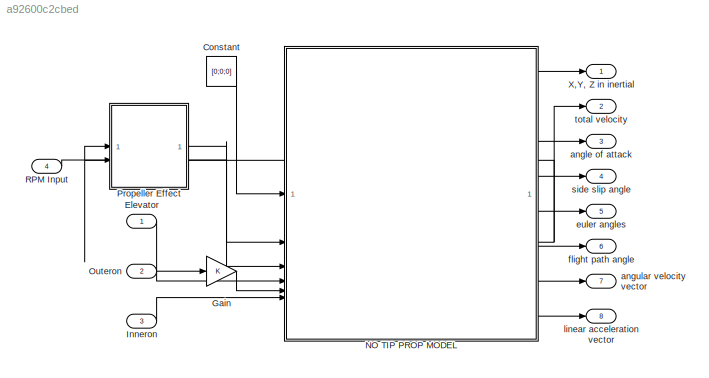
MODEL slx_a92600c2cbed
KIND model
CONFIG AbsTol = auto
CONFIG EnableMultiTasking = off
CONFIG FixedStep = auto
CONFIG MaxStep = auto
CONFIG MinStep = auto
CONFIG RelTol = 1e-3
CONFIG SampleTimeConstraint = Unconstrained
CONFIG SolverName = VariableStepAuto
CONFIG StartTime = 0.0
CONFIG StopTime = 100.0
BLOCK [Constant] Constant
  Value = [0;0;0]
BLOCK [Inport] Elevator
BLOCK [Gain] Gain
BLOCK [Inport] Inneron
  Port = 3
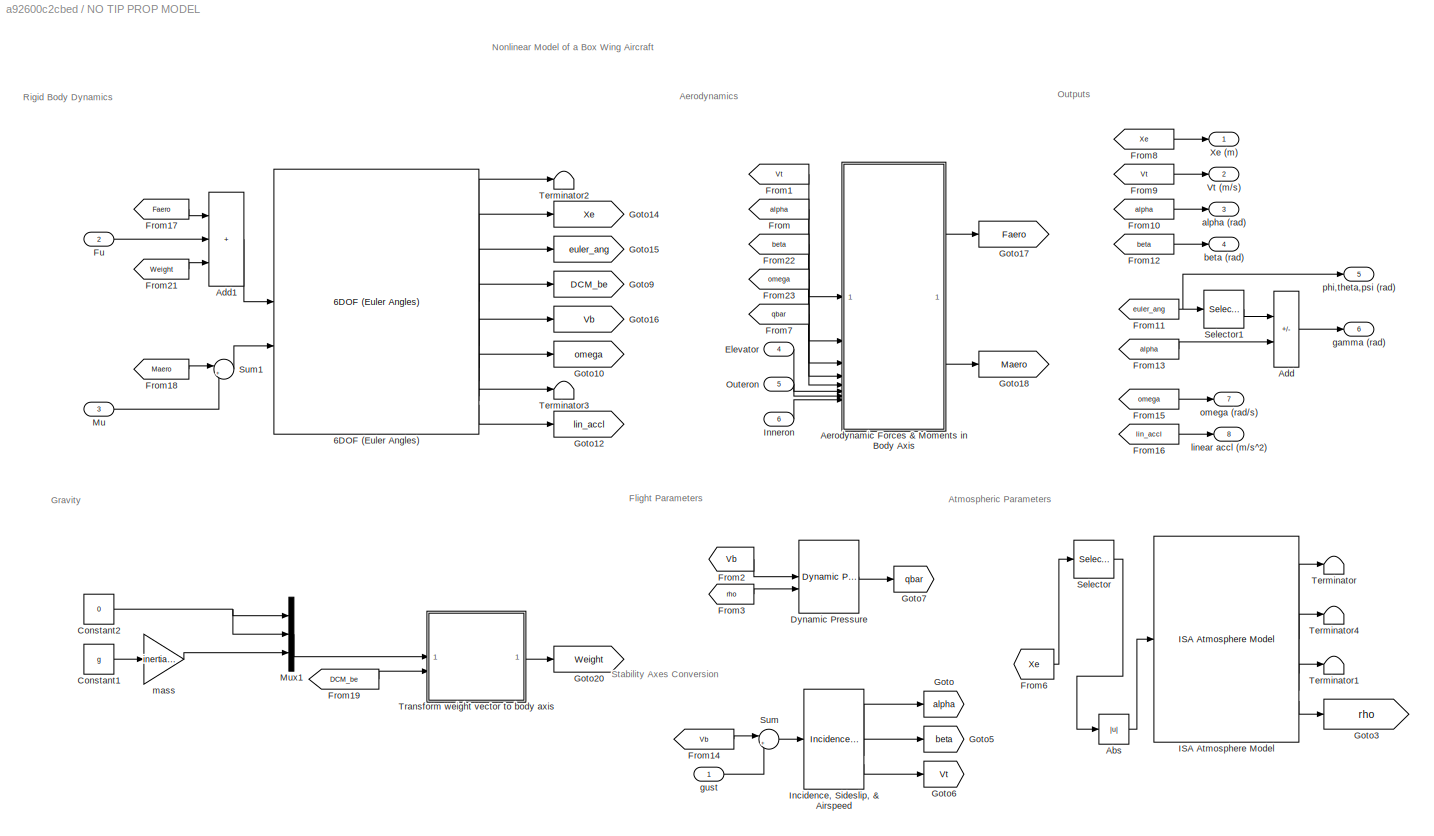
BLOCK [SubSystem] NO TIP PROP MODEL
BLOCK [Reference] NO TIP PROP MODEL/6DOF (Euler Angles)  REF=shared6dof/6DOF (Euler Angles)
  SourceBlock = shared6dof/6DOF (Euler Angles)
  SourceType = 6DOF EoM (Body Axis)
BLOCK [Abs] NO TIP PROP MODEL/Abs
  SaturateOnIntegerOverflow = off
BLOCK [Sum] NO TIP PROP MODEL/Add
  IconShape = rectangular
  Inputs = +-
BLOCK [Sum] NO TIP PROP MODEL/Add1
  IconShape = rectangular
  Inputs = +++
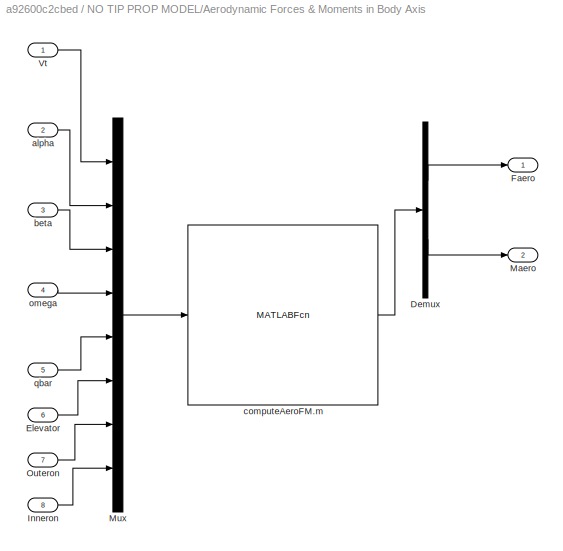
BLOCK [SubSystem] NO TIP PROP MODEL/Aerodynamic Forces & Moments in Body Axis
BLOCK [Demux] NO TIP PROP MODEL/Aerodynamic Forces & Moments in Body Axis/Demux
  Outputs = 2
BLOCK [Inport] NO TIP PROP MODEL/Aerodynamic Forces & Moments in Body Axis/Elevator 
  Port = 6
BLOCK [Outport] NO TIP PROP MODEL/Aerodynamic Forces & Moments in Body Axis/Faero
  PortDimensions = 3
BLOCK [Inport] NO TIP PROP MODEL/Aerodynamic Forces & Moments in Body Axis/Inneron
  Port = 8
BLOCK [Outport] NO TIP PROP MODEL/Aerodynamic Forces & Moments in Body Axis/Maero
  Port = 2
  PortDimensions = 3
BLOCK [Mux] NO TIP PROP MODEL/Aerodynamic Forces & Moments in Body Axis/Mux
  DisplayOption = bar
  Inputs = 8
BLOCK [Inport] NO TIP PROP MODEL/Aerodynamic Forces & Moments in Body Axis/Outeron
  Port = 7
BLOCK [Inport] NO TIP PROP MODEL/Aerodynamic Forces & Moments in Body Axis/Vt
BLOCK [Inport] NO TIP PROP MODEL/Aerodynamic Forces & Moments in Body Axis/alpha
  Port = 2
BLOCK [Inport] NO TIP PROP MODEL/Aerodynamic Forces & Moments in Body Axis/beta
  Port = 3
BLOCK [MATLABFcn] NO TIP PROP MODEL/Aerodynamic Forces & Moments in Body Axis/computeAeroFM.m
  MATLABFcn = computeAeroFM
  OutputDimensions = 6
  OutputSignalType = real
BLOCK [Inport] NO TIP PROP MODEL/Aerodynamic Forces & Moments in Body Axis/omega
  Port = 4
BLOCK [Inport] NO TIP PROP MODEL/Aerodynamic Forces & Moments in Body Axis/qbar
  Port = 5
BLOCK [Constant] NO TIP PROP MODEL/Constant1
  Value = g
BLOCK [Constant] NO TIP PROP MODEL/Constant2
  Value = 0
BLOCK [Reference] NO TIP PROP MODEL/Dynamic Pressure  REF=aerolibasang/Dynamic Pressure
  SourceBlock = aerolibasang/Dynamic Pressure
  SourceType = Dynamic Pressure
BLOCK [Inport] NO TIP PROP MODEL/Elevator 
  Port = 4
BLOCK [From] NO TIP PROP MODEL/From
  GotoTag = alpha
BLOCK [From] NO TIP PROP MODEL/From1
  GotoTag = Vt
BLOCK [From] NO TIP PROP MODEL/From10
  GotoTag = alpha
BLOCK [From] NO TIP PROP MODEL/From11
  GotoTag = euler_ang
BLOCK [From] NO TIP PROP MODEL/From12
  GotoTag = beta
BLOCK [From] NO TIP PROP MODEL/From13
  GotoTag = alpha
BLOCK [From] NO TIP PROP MODEL/From14
  GotoTag = Vb
BLOCK [From] NO TIP PROP MODEL/From15
  GotoTag = omega
BLOCK [From] NO TIP PROP MODEL/From16
  GotoTag = lin_accl
BLOCK [From] NO TIP PROP MODEL/From17
  GotoTag = Faero
BLOCK [From] NO TIP PROP MODEL/From18
  GotoTag = Maero
BLOCK [From] NO TIP PROP MODEL/From19
  GotoTag = DCM_be
BLOCK [From] NO TIP PROP MODEL/From2
  GotoTag = Vb
BLOCK [From] NO TIP PROP MODEL/From21
  GotoTag = Weight
BLOCK [From] NO TIP PROP MODEL/From22
  GotoTag = beta
BLOCK [From] NO TIP PROP MODEL/From23
  GotoTag = omega
BLOCK [From] NO TIP PROP MODEL/From3
  GotoTag = rho
BLOCK [From] NO TIP PROP MODEL/From6
  GotoTag = Xe
BLOCK [From] NO TIP PROP MODEL/From7
  GotoTag = qbar
BLOCK [From] NO TIP PROP MODEL/From8
  GotoTag = Xe
BLOCK [From] NO TIP PROP MODEL/From9
  GotoTag = Vt
BLOCK [Inport] NO TIP PROP MODEL/Fu
  Port = 2
  PortDimensions = 3
BLOCK [Goto] NO TIP PROP MODEL/Goto
  GotoTag = alpha
BLOCK [Goto] NO TIP PROP MODEL/Goto10
  GotoTag = omega
BLOCK [Goto] NO TIP PROP MODEL/Goto12
  GotoTag = lin_accl
BLOCK [Goto] NO TIP PROP MODEL/Goto14
  GotoTag = Xe
BLOCK [Goto] NO TIP PROP MODEL/Goto15
  GotoTag = euler_ang
BLOCK [Goto] NO TIP PROP MODEL/Goto16
  GotoTag = Vb
BLOCK [Goto] NO TIP PROP MODEL/Goto17
  GotoTag = Faero
BLOCK [Goto] NO TIP PROP MODEL/Goto18
  GotoTag = Maero
BLOCK [Goto] NO TIP PROP MODEL/Goto20
  GotoTag = Weight
BLOCK [Goto] NO TIP PROP MODEL/Goto3
  GotoTag = rho
BLOCK [Goto] NO TIP PROP MODEL/Goto5
  GotoTag = beta
BLOCK [Goto] NO TIP PROP MODEL/Goto6
  GotoTag = Vt
BLOCK [Goto] NO TIP PROP MODEL/Goto7
  GotoTag = qbar
BLOCK [Goto] NO TIP PROP MODEL/Goto9
  GotoTag = DCM_be
BLOCK [Reference] NO TIP PROP MODEL/ISA Atmosphere Model  REF=aerolibatmos2/ISA Atmosphere Model
  SourceBlock = aerolibatmos2/ISA Atmosphere Model
  SourceType = International Standard Atmosphere Model
BLOCK [Reference] NO TIP PROP MODEL/Incidence, Sideslip, & Airspeed  REF=aerolibasang/Incidence, Sideslip,
& Airspeed
  SourceBlock = aerolibasang/Incidence, Sideslip,\n& Airspeed
  SourceType = Incidence,Sideslip,&Airspeed
BLOCK [Inport] NO TIP PROP MODEL/Inneron
  Port = 6
BLOCK [Inport] NO TIP PROP MODEL/Mu
  Port = 3
  PortDimensions = 3
BLOCK [Mux] NO TIP PROP MODEL/Mux1
  DisplayOption = bar
  Inputs = 3
BLOCK [Inport] NO TIP PROP MODEL/Outeron
  Port = 5
BLOCK [Selector] NO TIP PROP MODEL/Selector
  IndexOptions = Index vector (dialog)
  Indices = 3
  InputPortWidth = 3
  OutputSizes = 1
BLOCK [Selector] NO TIP PROP MODEL/Selector1
  IndexOptions = Index vector (dialog)
  Indices = 2
  InputPortWidth = 3
  OutputSizes = 1
BLOCK [Sum] NO TIP PROP MODEL/Sum
  Inputs = |++
BLOCK [Sum] NO TIP PROP MODEL/Sum1
  Inputs = |++
BLOCK [Terminator] NO TIP PROP MODEL/Terminator
BLOCK [Terminator] NO TIP PROP MODEL/Terminator1
BLOCK [Terminator] NO TIP PROP MODEL/Terminator2
BLOCK [Terminator] NO TIP PROP MODEL/Terminator3
BLOCK [Terminator] NO TIP PROP MODEL/Terminator4
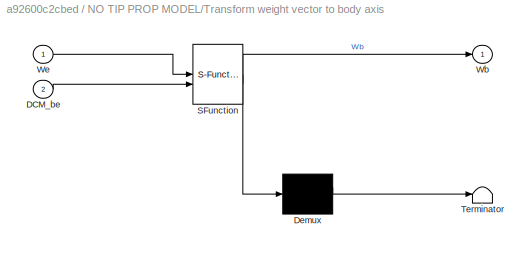
BLOCK [SubSystem] NO TIP PROP MODEL/Transform weight vector to body axis
  ErrorFcn = Stateflow.Translate.translate
  PermitHierarchicalResolution = ExplicitOnly
  SFBlockType = MATLAB Function
  TreatAsAtomicUnit = on
BLOCK [Demux] NO TIP PROP MODEL/Transform weight vector to body axis/ Demux 
  Outputs = 1
BLOCK [S-Function] NO TIP PROP MODEL/Transform weight vector to body axis/ SFunction 
  EnableBusSupport = on
  FunctionName = sf_sfun
  PortCounts = [2 2]
  SFcnIsStateOwnerBlock = off
  SFunctionDeploymentMode = off
  Tag = Stateflow S-Function 1
BLOCK [Terminator] NO TIP PROP MODEL/Transform weight vector to body axis/ Terminator 
BLOCK [Inport] NO TIP PROP MODEL/Transform weight vector to body axis/DCM_be
  Port = 2
BLOCK [Outport] NO TIP PROP MODEL/Transform weight vector to body axis/Wb
BLOCK [Inport] NO TIP PROP MODEL/Transform weight vector to body axis/We
BLOCK [Outport] NO TIP PROP MODEL/Vt (m//s)
  Port = 2
BLOCK [Outport] NO TIP PROP MODEL/Xe (m)
BLOCK [Outport] NO TIP PROP MODEL/alpha (rad)
  Port = 3
BLOCK [Outport] NO TIP PROP MODEL/beta (rad)
  Port = 4
BLOCK [Outport] NO TIP PROP MODEL/gamma (rad)
  Port = 6
BLOCK [Inport] NO TIP PROP MODEL/gust
  PortDimensions = 3
BLOCK [Outport] NO TIP PROP MODEL/linear accl (m//s^2)
  Port = 8
BLOCK [Gain] NO TIP PROP MODEL/mass
  Gain = inertiaGeom.mass
BLOCK [Outport] NO TIP PROP MODEL/omega (rad//s)
  Port = 7
BLOCK [Outport] NO TIP PROP MODEL/phi,theta,psi (rad)
  Port = 5
BLOCK [Inport] Outeron
  Port = 2
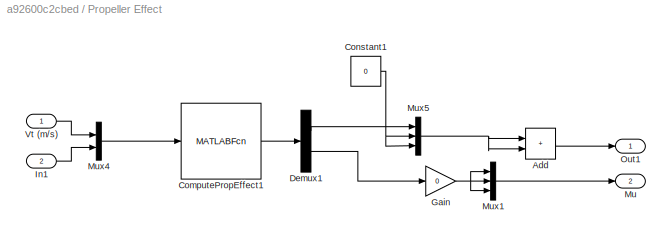
BLOCK [SubSystem] Propeller Effect
BLOCK [Sum] Propeller Effect/Add
  IconShape = rectangular
BLOCK [MATLABFcn] Propeller Effect/ComputePropEffect1
  MATLABFcn = ComputePropEffect
  OutputDimensions = 2
  OutputSignalType = real
BLOCK [Constant] Propeller Effect/Constant1
  Value = 0
BLOCK [Demux] Propeller Effect/Demux1
  Outputs = 2
BLOCK [Gain] Propeller Effect/Gain
  Gain = 0
BLOCK [Inport] Propeller Effect/In1
  Port = 2
BLOCK [Outport] Propeller Effect/Mu
  Port = 2
BLOCK [Mux] Propeller Effect/Mux1
  DisplayOption = bar
  Inputs = 3
BLOCK [Mux] Propeller Effect/Mux4
  DisplayOption = bar
  Inputs = 2
BLOCK [Mux] Propeller Effect/Mux5
  DisplayOption = bar
  Inputs = 3
BLOCK [Outport] Propeller Effect/Out1
BLOCK [Inport] Propeller Effect/Vt (m//s)
BLOCK [Inport] RPM Input
  Port = 4
BLOCK [Outport] X,Y, Z in inertial
BLOCK [Outport] angle of attack
  Port = 3
BLOCK [Outport] angular velocity vector
  Port = 7
BLOCK [Outport] euler angles
  Port = 5
BLOCK [Outport] flight path angle
  Port = 6
BLOCK [Outport] linear acceleration vector
  Port = 8
BLOCK [Outport] side slip angle
  Port = 4
BLOCK [Outport] total velocity
  Port = 2
ANNOTATION NO TIP PROP MODEL: Nonlinear Model of a Box Wing Aircraft
ANNOTATION NO TIP PROP MODEL: Aerodynamics
ANNOTATION NO TIP PROP MODEL: Atmospheric Parameters
ANNOTATION NO TIP PROP MODEL: Flight Parameters
ANNOTATION NO TIP PROP MODEL: Gravity
ANNOTATION NO TIP PROP MODEL: Outputs
ANNOTATION NO TIP PROP MODEL: Rigid Body Dynamics
ANNOTATION NO TIP PROP MODEL: Stability Axes Conversion
LINE Constant:1 -> NO TIP PROP MODEL:1
LINE Elevator:1 -> NO TIP PROP MODEL:4
LINE Gain:1 -> NO TIP PROP MODEL:5
LINE Inneron:1 -> NO TIP PROP MODEL:6
LINE NO TIP PROP MODEL/6DOF (Euler Angles):1 -> NO TIP PROP MODEL/Terminator2:1
LINE NO TIP PROP MODEL/6DOF (Euler Angles):2 -> NO TIP PROP MODEL/Goto14:1
LINE NO TIP PROP MODEL/6DOF (Euler Angles):3 -> NO TIP PROP MODEL/Goto15:1
LINE NO TIP PROP MODEL/6DOF (Euler Angles):4 -> NO TIP PROP MODEL/Goto9:1
LINE NO TIP PROP MODEL/6DOF (Euler Angles):5 -> NO TIP PROP MODEL/Goto16:1
LINE NO TIP PROP MODEL/6DOF (Euler Angles):6 -> NO TIP PROP MODEL/Goto10:1
LINE NO TIP PROP MODEL/6DOF (Euler Angles):7 -> NO TIP PROP MODEL/Terminator3:1
LINE NO TIP PROP MODEL/6DOF (Euler Angles):8 -> NO TIP PROP MODEL/Goto12:1
LINE NO TIP PROP MODEL/Abs:1 -> NO TIP PROP MODEL/ISA Atmosphere Model:1
LINE NO TIP PROP MODEL/Add1:1 -> NO TIP PROP MODEL/6DOF (Euler Angles):1
LINE NO TIP PROP MODEL/Add:1 -> NO TIP PROP MODEL/gamma (rad):1
LINE NO TIP PROP MODEL/Aerodynamic Forces & Moments in Body Axis/Demux:1 -> NO TIP PROP MODEL/Aerodynamic Forces & Moments in Body Axis/Faero:1
LINE NO TIP PROP MODEL/Aerodynamic Forces & Moments in Body Axis/Demux:2 -> NO TIP PROP MODEL/Aerodynamic Forces & Moments in Body Axis/Maero:1
LINE NO TIP PROP MODEL/Aerodynamic Forces & Moments in Body Axis/Elevator :1 -> NO TIP PROP MODEL/Aerodynamic Forces & Moments in Body Axis/Mux:6
LINE NO TIP PROP MODEL/Aerodynamic Forces & Moments in Body Axis/Inneron:1 -> NO TIP PROP MODEL/Aerodynamic Forces & Moments in Body Axis/Mux:8
LINE NO TIP PROP MODEL/Aerodynamic Forces & Moments in Body Axis/Mux:1 -> NO TIP PROP MODEL/Aerodynamic Forces & Moments in Body Axis/computeAeroFM.m:1
LINE NO TIP PROP MODEL/Aerodynamic Forces & Moments in Body Axis/Outeron:1 -> NO TIP PROP MODEL/Aerodynamic Forces & Moments in Body Axis/Mux:7
LINE NO TIP PROP MODEL/Aerodynamic Forces & Moments in Body Axis/Vt:1 -> NO TIP PROP MODEL/Aerodynamic Forces & Moments in Body Axis/Mux:1
LINE NO TIP PROP MODEL/Aerodynamic Forces & Moments in Body Axis/alpha:1 -> NO TIP PROP MODEL/Aerodynamic Forces & Moments in Body Axis/Mux:2
LINE NO TIP PROP MODEL/Aerodynamic Forces & Moments in Body Axis/beta:1 -> NO TIP PROP MODEL/Aerodynamic Forces & Moments in Body Axis/Mux:3
LINE NO TIP PROP MODEL/Aerodynamic Forces & Moments in Body Axis/computeAeroFM.m:1 -> NO TIP PROP MODEL/Aerodynamic Forces & Moments in Body Axis/Demux:1
LINE NO TIP PROP MODEL/Aerodynamic Forces & Moments in Body Axis/omega:1 -> NO TIP PROP MODEL/Aerodynamic Forces & Moments in Body Axis/Mux:4
LINE NO TIP PROP MODEL/Aerodynamic Forces & Moments in Body Axis/qbar:1 -> NO TIP PROP MODEL/Aerodynamic Forces & Moments in Body Axis/Mux:5
LINE NO TIP PROP MODEL/Aerodynamic Forces & Moments in Body Axis:1 -> NO TIP PROP MODEL/Goto17:1
LINE NO TIP PROP MODEL/Aerodynamic Forces & Moments in Body Axis:2 -> NO TIP PROP MODEL/Goto18:1
LINE NO TIP PROP MODEL/Constant1:1 -> NO TIP PROP MODEL/mass:1
NET NO TIP PROP MODEL/Constant2:1 -> NO TIP PROP MODEL/Mux1:1, NO TIP PROP MODEL/Mux1:2
LINE NO TIP PROP MODEL/Dynamic Pressure:1 -> NO TIP PROP MODEL/Goto7:1
LINE NO TIP PROP MODEL/Elevator :1 -> NO TIP PROP MODEL/Aerodynamic Forces & Moments in Body Axis:6
LINE NO TIP PROP MODEL/From10:1 -> NO TIP PROP MODEL/alpha (rad):1
NET NO TIP PROP MODEL/From11:1 -> NO TIP PROP MODEL/Selector1:1, NO TIP PROP MODEL/phi,theta,psi (rad):1
LINE NO TIP PROP MODEL/From12:1 -> NO TIP PROP MODEL/beta (rad):1
LINE NO TIP PROP MODEL/From13:1 -> NO TIP PROP MODEL/Add:2
LINE NO TIP PROP MODEL/From14:1 -> NO TIP PROP MODEL/Sum:1
LINE NO TIP PROP MODEL/From15:1 -> NO TIP PROP MODEL/omega (rad//s):1
LINE NO TIP PROP MODEL/From16:1 -> NO TIP PROP MODEL/linear accl (m//s^2):1
LINE NO TIP PROP MODEL/From17:1 -> NO TIP PROP MODEL/Add1:1
LINE NO TIP PROP MODEL/From18:1 -> NO TIP PROP MODEL/Sum1:1
LINE NO TIP PROP MODEL/From19:1 -> NO TIP PROP MODEL/Transform weight vector to body axis:2
LINE NO TIP PROP MODEL/From1:1 -> NO TIP PROP MODEL/Aerodynamic Forces & Moments in Body Axis:1
LINE NO TIP PROP MODEL/From21:1 -> NO TIP PROP MODEL/Add1:3
LINE NO TIP PROP MODEL/From22:1 -> NO TIP PROP MODEL/Aerodynamic Forces & Moments in Body Axis:3
LINE NO TIP PROP MODEL/From23:1 -> NO TIP PROP MODEL/Aerodynamic Forces & Moments in Body Axis:4
LINE NO TIP PROP MODEL/From2:1 -> NO TIP PROP MODEL/Dynamic Pressure:1
LINE NO TIP PROP MODEL/From3:1 -> NO TIP PROP MODEL/Dynamic Pressure:2
LINE NO TIP PROP MODEL/From6:1 -> NO TIP PROP MODEL/Selector:1
LINE NO TIP PROP MODEL/From7:1 -> NO TIP PROP MODEL/Aerodynamic Forces & Moments in Body Axis:5
LINE NO TIP PROP MODEL/From8:1 -> NO TIP PROP MODEL/Xe (m):1
LINE NO TIP PROP MODEL/From9:1 -> NO TIP PROP MODEL/Vt (m//s):1
LINE NO TIP PROP MODEL/From:1 -> NO TIP PROP MODEL/Aerodynamic Forces & Moments in Body Axis:2
LINE NO TIP PROP MODEL/Fu:1 -> NO TIP PROP MODEL/Add1:2
LINE NO TIP PROP MODEL/ISA Atmosphere Model:1 -> NO TIP PROP MODEL/Terminator:1
LINE NO TIP PROP MODEL/ISA Atmosphere Model:2 -> NO TIP PROP MODEL/Terminator4:1
LINE NO TIP PROP MODEL/ISA Atmosphere Model:3 -> NO TIP PROP MODEL/Terminator1:1
LINE NO TIP PROP MODEL/ISA Atmosphere Model:4 -> NO TIP PROP MODEL/Goto3:1
LINE NO TIP PROP MODEL/Incidence, Sideslip, & Airspeed:1 -> NO TIP PROP MODEL/Goto:1
LINE NO TIP PROP MODEL/Incidence, Sideslip, & Airspeed:2 -> NO TIP PROP MODEL/Goto5:1
LINE NO TIP PROP MODEL/Incidence, Sideslip, & Airspeed:3 -> NO TIP PROP MODEL/Goto6:1
LINE NO TIP PROP MODEL/Inneron:1 -> NO TIP PROP MODEL/Aerodynamic Forces & Moments in Body Axis:8
LINE NO TIP PROP MODEL/Mu:1 -> NO TIP PROP MODEL/Sum1:2
LINE NO TIP PROP MODEL/Mux1:1 -> NO TIP PROP MODEL/Transform weight vector to body axis:1
LINE NO TIP PROP MODEL/Outeron:1 -> NO TIP PROP MODEL/Aerodynamic Forces & Moments in Body Axis:7
LINE NO TIP PROP MODEL/Selector1:1 -> NO TIP PROP MODEL/Add:1
LINE NO TIP PROP MODEL/Selector:1 -> NO TIP PROP MODEL/Abs:1
LINE NO TIP PROP MODEL/Sum1:1 -> NO TIP PROP MODEL/6DOF (Euler Angles):2
LINE NO TIP PROP MODEL/Sum:1 -> NO TIP PROP MODEL/Incidence, Sideslip, & Airspeed:1
LINE NO TIP PROP MODEL/Transform weight vector to body axis:1 -> NO TIP PROP MODEL/Goto20:1
LINE NO TIP PROP MODEL/gust:1 -> NO TIP PROP MODEL/Sum:2
LINE NO TIP PROP MODEL/mass:1 -> NO TIP PROP MODEL/Mux1:3
LINE NO TIP PROP MODEL:1 -> X,Y, Z in inertial:1
NET NO TIP PROP MODEL:2 -> Propeller Effect:1, total velocity:1
LINE NO TIP PROP MODEL:3 -> angle of attack:1
LINE NO TIP PROP MODEL:4 -> side slip angle:1
LINE NO TIP PROP MODEL:5 -> euler angles:1
LINE NO TIP PROP MODEL:6 -> flight path angle:1
LINE NO TIP PROP MODEL:7 -> angular velocity vector:1
LINE NO TIP PROP MODEL:8 -> linear acceleration vector:1
LINE Outeron:1 -> Gain:1
LINE Propeller Effect/Add:1 -> Propeller Effect/Out1:1
LINE Propeller Effect/ComputePropEffect1:1 -> Propeller Effect/Demux1:1
NET Propeller Effect/Constant1:1 -> Propeller Effect/Mux5:2, Propeller Effect/Mux5:3
LINE Propeller Effect/Demux1:1 -> Propeller Effect/Mux5:1
LINE Propeller Effect/Demux1:2 -> Propeller Effect/Gain:1
NET Propeller Effect/Gain:1 -> Propeller Effect/Mux1:1, Propeller Effect/Mux1:2, Propeller Effect/Mux1:3
LINE Propeller Effect/In1:1 -> Propeller Effect/Mux4:2
LINE Propeller Effect/Mux1:1 -> Propeller Effect/Mu:1
LINE Propeller Effect/Mux4:1 -> Propeller Effect/ComputePropEffect1:1
NET Propeller Effect/Mux5:1 -> Propeller Effect/Add:1, Propeller Effect/Add:2
LINE Propeller Effect/Vt (m//s):1 -> Propeller Effect/Mux4:1
LINE Propeller Effect:1 -> NO TIP PROP MODEL:2
LINE Propeller Effect:2 -> NO TIP PROP MODEL:3
LINE RPM Input:1 -> Propeller Effect:2
note: NET lines group one-source signal fan-out (src -> all destinations, sorted); 1:1 wires keep LINE
CHART NO TIP PROP MODEL/Transform weight vector to body axis states=1 transitions=1
  STATE_LABEL 'eML_blk_kernel()'
  STATE_LABEL "SCRIPT:\nfunction Wb = fcn(We,DCM_be)\nWb = DCM_be'*We; % Weight in body coordinate system.\n"
CHART  states=0 transitions=0
